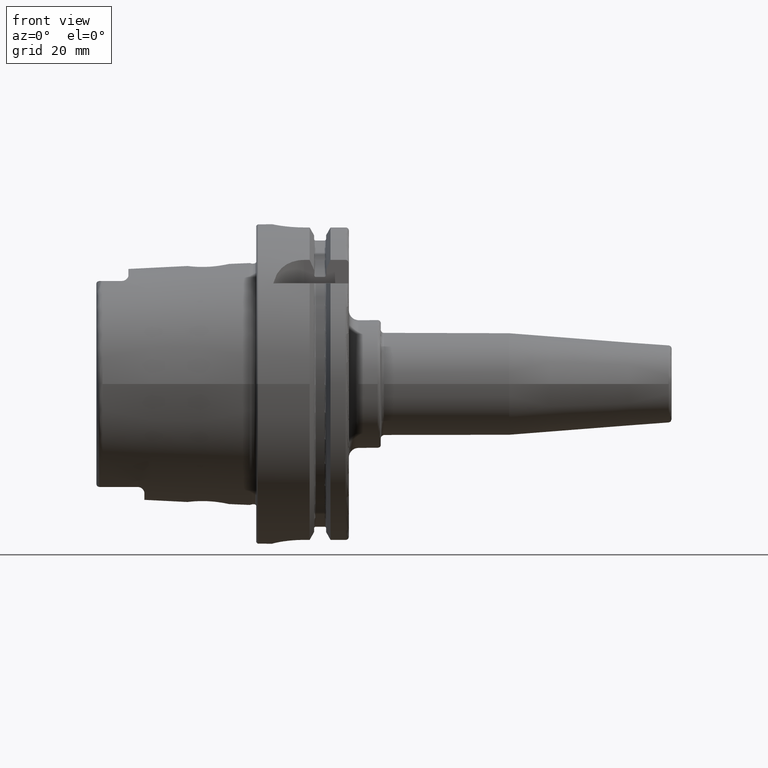
[diagram: clean part render]
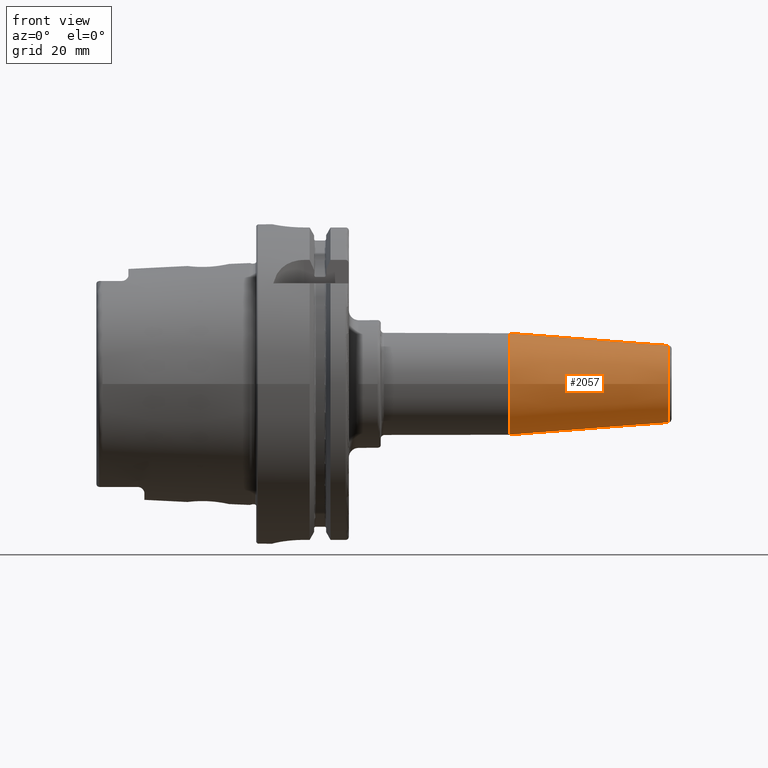
[diagram: same view with one face highlighted and labeled with its STEP entity id]
A machine part, front view. The second image highlights one B-rep face of the part: STEP entity #2057.
In plain terms, the highlighted conical surface has half-angle 4.5 deg.
Its self-contained STEP definition (entity closure, byte-faithful):
#227=FACE_OUTER_BOUND('',#355,.T.);
#355=EDGE_LOOP('',(#1429,#1430,#1431,#1432,#1433));
#483=LINE('',#3188,#591);
#591=VECTOR('',#2549,14.);
#699=CIRCLE('',#2207,16.);
#712=CIRCLE('',#2226,12.0725268420749);
#713=CIRCLE('',#2227,12.0725268420749);
#843=VERTEX_POINT('',#3151);
#853=VERTEX_POINT('',#3182);
#854=VERTEX_POINT('',#3184);
#1059=EDGE_CURVE('',#843,#843,#699,.T.);
#1075=EDGE_CURVE('',#853,#854,#712,.T.);
#1076=EDGE_CURVE('',#854,#853,#713,.T.);
#1077=EDGE_CURVE('',#854,#843,#483,.T.);
#1429=ORIENTED_EDGE('',*,*,#1076,.F.);
#1430=ORIENTED_EDGE('',*,*,#1077,.T.);
#1431=ORIENTED_EDGE('',*,*,#1059,.T.);
#1432=ORIENTED_EDGE('',*,*,#1077,.F.);
#1433=ORIENTED_EDGE('',*,*,#1075,.F.);
#2029=CONICAL_SURFACE('',#2228,14.,0.0785398163397453);
#2057=ADVANCED_FACE('',(#227),#2029,.T.);
#2207=AXIS2_PLACEMENT_3D('',#3152,#2502,#2503);
#2226=AXIS2_PLACEMENT_3D('',#3185,#2543,#2544);
#2227=AXIS2_PLACEMENT_3D('',#3186,#2545,#2546);
#2228=AXIS2_PLACEMENT_3D('',#3187,#2547,#2548);
#2502=DIRECTION('center_axis',(1.,0.,0.));
#2503=DIRECTION('ref_axis',(0.,0.,-1.));
#2543=DIRECTION('center_axis',(1.,0.,0.));
#2544=DIRECTION('ref_axis',(0.,-1.,3.06161699786838E-17));
#2545=DIRECTION('center_axis',(1.,0.,0.));
#2546=DIRECTION('ref_axis',(0.,-1.,3.06161699786838E-17));
#2547=DIRECTION('center_axis',(-1.,0.,0.));
#2548=DIRECTION('ref_axis',(0.,1.,0.));
#2549=DIRECTION('',(-0.996917333733128,-0.0784590957278454,-9.60846804471016E-18));
#3151=CARTESIAN_POINT('',(79.1751810553015,-16.,-1.95943487863576E-15));
#3152=CARTESIAN_POINT('Origin',(79.1751810553015,0.,0.));
#3182=CARTESIAN_POINT('',(129.078459095728,-1.47845813547676E-15,12.0725268420749));
#3184=CARTESIAN_POINT('',(129.078459095728,-12.0725268420749,-1.47845813547676E-15));
#3185=CARTESIAN_POINT('Origin',(129.078459095728,0.,-1.84807266934594E-15));
#3186=CARTESIAN_POINT('Origin',(129.078459095728,0.,-1.84807266934594E-15));
#3187=CARTESIAN_POINT('Origin',(104.587590527651,0.,0.));
#3188=CARTESIAN_POINT('',(104.587590527651,-14.,-1.71450551880629E-15));